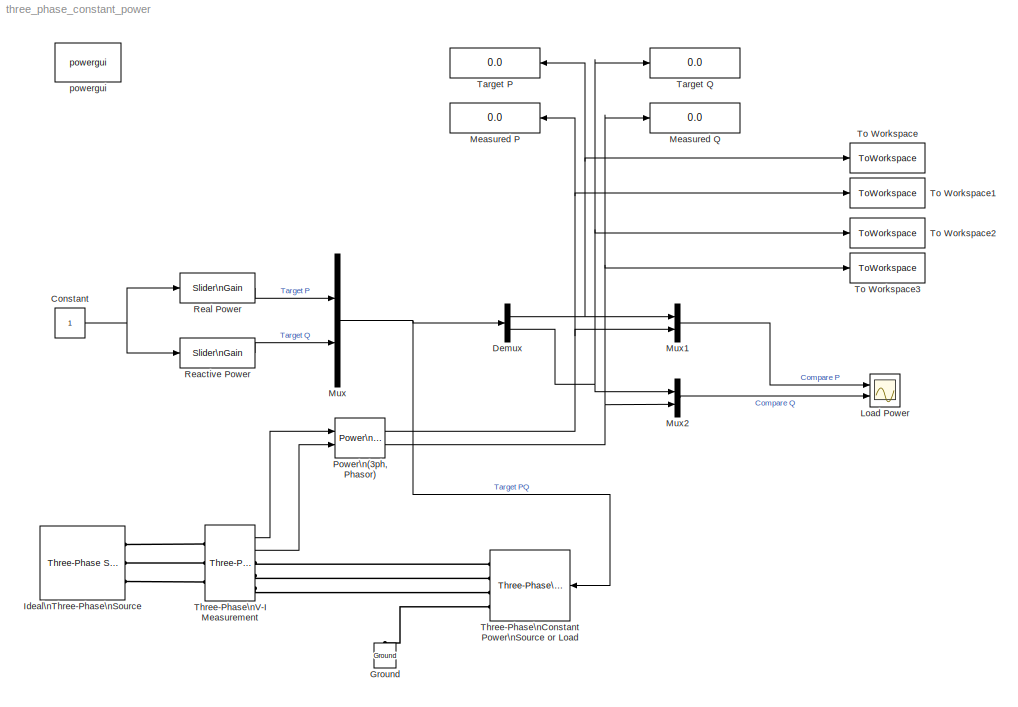
MODEL three_phase_constant_power
KIND model
CONFIG InitFcn = Ts = 1e-5;\n
BLOCK [Constant] Constant
  SID = 6
BLOCK [Demux] Demux
  DisplayOption = bar
  Outputs = 2
  Ports = [1, 2]
  SID = 79
BLOCK [Reference] Ground  REF=powerlib/Elements/Ground
  LConnTagsString = a
  Ports = [0, 0, 0, 0, 0, 1]
  SID = 76
  SourceBlock = powerlib/Elements/Ground
  SourceType = Ground
BLOCK [Reference] Ideal\nThree-Phase\nSource  REF=powerlib/Electrical\nSources/Three-Phase Source
  BaseVoltage = 480
  BusType = swing
  Frequency = 60
  Inductance = 0
  InternalConnection = Yg
  PhaseAngle = 0
  Ports = [0, 0, 0, 0, 0, 0, 3]
  Pref = 0
  Qmax = inf
  Qmin = -inf
  Qref = 0
  Resistance = 0
  SID = 4
  ShortCircuitLevel = 1e6
  SourceBlock = powerlib/Electrical\nSources/Three-Phase Source
  SourceType = Three-Phase Source
  SpecifyImpedance = on
  Voltage = 480
  XRratio = 1
BLOCK [Scope] Load Power
  DataFormat = StructureWithTime
  Floating = off
  LimitDataPoints = off
  NumInputPorts = 2
  Ports = [2]
  SID = 9
  SampleTime = 0
  ShowLegends = off
  TickLabels = on
  YMax = 3000~5.5e-13
  YMin = -3000~0
  ZoomMode = yonly
BLOCK [Display] Measured P
  Decimation = 1
  Lockdown = off
  Ports = [1]
  SID = 128
BLOCK [Display] Measured Q
  Decimation = 1
  Lockdown = off
  Ports = [1]
  SID = 129
BLOCK [Mux] Mux
  DisplayOption = bar
  Inputs = 2
  Ports = [2, 1]
  SID = 7
BLOCK [Mux] Mux1
  DisplayOption = bar
  Inputs = 2
  Ports = [2, 1]
  SID = 81
BLOCK [Mux] Mux2
  DisplayOption = bar
  Inputs = 2
  Ports = [2, 1]
  SID = 82
BLOCK [Reference] Power\n(3ph, Phasor)  REF=powerlib_meascontrol/Measurements/Power\n(3ph, Phasor)
  Ports = [2, 2]
  SID = 202
  SourceBlock = powerlib_meascontrol/Measurements/Power\n(3ph, Phasor)
  SourceType = Power (3ph, Phasor)
BLOCK [Reference] Reactive Power  REF=simulink/Math\nOperations/Slider\nGain
  Ports = [1, 1]
  SID = 73
  SourceBlock = simulink/Math\nOperations/Slider\nGain
  SourceType = Slider Gain
  gain = 1000
  high = 5000
  low = -5000
BLOCK [Reference] Real Power  REF=simulink/Math\nOperations/Slider\nGain
  Ports = [1, 1]
  SID = 72
  SourceBlock = simulink/Math\nOperations/Slider\nGain
  SourceType = Slider Gain
  gain = 5000
  high = 10000
  low = -5000
BLOCK [Display] Target P
  Decimation = 1
  Lockdown = off
  Ports = [1]
  SID = 127
BLOCK [Display] Target Q
  Decimation = 1
  Lockdown = off
  Ports = [1]
  SID = 130
BLOCK [Reference] Three-Phase\nConstant Power\nSource or Load  REF=CampusEnergyModeling/Electrical/Three-Phase\nConstant Power\nSource or Load
  Conven = load
  PNom = 10000
  Ports = [1, 0, 0, 0, 0, 0, 4]
  QNom = 0
  SID = 197
  SourceBlock = CampusEnergyModeling/Electrical/Three-Phase\nConstant Power\nSource or Load
  SourceType = Three-Phase Constant Power Source/Load
  VLow = 0.7
  VNom = 480
  fNom = 60
BLOCK [Reference] Three-Phase\nV-I Measurement  REF=powerlib/Measurements/Three-Phase\nV-I Measurement
  CurrentMeasurement = yes
  Ipu = off
  LabelI = Iabc
  LabelV = Vabc
  OutputType = Complex
  PSBequivalent = 0
  Pbase = 100e6
  PhasorSimulation = on
  Ports = [0, 2, 0, 0, 0, 3, 3]
  SID = 18
  SetLabelI = off
  SetLabelV = off
  SourceBlock = powerlib/Measurements/Three-Phase\nV-I Measurement
  SourceType = Three-Phase VI Measurement
  Vbase = 500e3
  VoltageMeasurement = phase-to-ground
  Vpu = off
  VpuLL = off
BLOCK [ToWorkspace] To Workspace
  MaxDataPoints = 1
  Ports = [1]
  SID = 198
  SampleTime = -1
  VariableName = target_P
BLOCK [ToWorkspace] To Workspace1
  MaxDataPoints = 1
  Ports = [1]
  SID = 199
  SampleTime = -1
  VariableName = measured_P
BLOCK [ToWorkspace] To Workspace2
  MaxDataPoints = 1
  Ports = [1]
  SID = 200
  SampleTime = -1
  VariableName = target_Q
BLOCK [ToWorkspace] To Workspace3
  MaxDataPoints = 1
  Ports = [1]
  SID = 201
  SampleTime = -1
  VariableName = measured_Q
BLOCK [Reference] powergui  REF=powerlib/powergui
  DisableRonSwitches = off
  DisableSnubberDevices = off
  DisableVfSwitches = off
  DisplayEquations = off
  DisplayStyle = 1
  EnableUseOfTLC = off
  ErrMax = 1e-4
  Frange = [0:2:500]
  FreqAxis = off
  FunctionMessages = off
  HookPort = off
  Interpol = off
  Iterations = 50
  MaxFrequency = 1000
  Pbase = 100e3
  Ports = []
  Priority = 1
  ResistiveCurrentMeasurement = off
  RestoreLinks = warning
  RmsSteady = 1
  SID = 3
  SPID = off
  SampleTime = 50e-6
  ShowGrid = off
  SolverType = Tustin
  SourceBlock = powerlib/powergui
  SourceType = PSB option menu block
  StartTime = 0.0
  SwTol = 0
  Ts = 0
  UnitsV = kV
  UnitsW = MW
  UserData = DataTag0
  UserDataPersistent = on
  Xlog = on
  Ylog = off
  ZoomFFT = off
  cycles = 1
  display = off
  echomessages = off
  frequency = 60
  frequencyindice = 60
  frequencyindicesteady = 1
  fundamental = 60
  methode = off
  save = off
  variable = ZData
  x0status = blocks
NET Constant:1 -> Reactive Power:1, Real Power:1
NET Demux:1 -> Mux1:1, Target P:1, To Workspace:1
NET Demux:2 -> Mux2:1, Target Q:1, To Workspace2:1
LINE Mux1:1 -> Load Power:1
LINE Mux2:1 -> Load Power:2
NET Mux:1 -> Demux:1, Three-Phase\nConstant Power\nSource or Load:1
NET Power\n(3ph, Phasor):1 -> Measured P:1, Mux1:2, To Workspace1:1
NET Power\n(3ph, Phasor):2 -> Measured Q:1, Mux2:2, To Workspace3:1
LINE Reactive Power:1 -> Mux:2
LINE Real Power:1 -> Mux:1
LINE Three-Phase\nV-I Measurement:1 -> Power\n(3ph, Phasor):1
LINE Three-Phase\nV-I Measurement:2 -> Power\n(3ph, Phasor):2
PLINE Ground:LConn1 -- Three-Phase\nConstant Power\nSource or Load:RConn4
PLINE Ideal\nThree-Phase\nSource:RConn1 -- Three-Phase\nV-I Measurement:LConn1
PLINE Ideal\nThree-Phase\nSource:RConn2 -- Three-Phase\nV-I Measurement:LConn2
PLINE Ideal\nThree-Phase\nSource:RConn3 -- Three-Phase\nV-I Measurement:LConn3
PLINE Three-Phase\nConstant Power\nSource or Load:RConn1 -- Three-Phase\nV-I Measurement:RConn1
PLINE Three-Phase\nConstant Power\nSource or Load:RConn2 -- Three-Phase\nV-I Measurement:RConn2
PLINE Three-Phase\nConstant Power\nSource or Load:RConn3 -- Three-Phase\nV-I Measurement:RConn3
note: NET lines group one-source signal fan-out (src -> all destinations, sorted); 1:1 wires keep LINE
